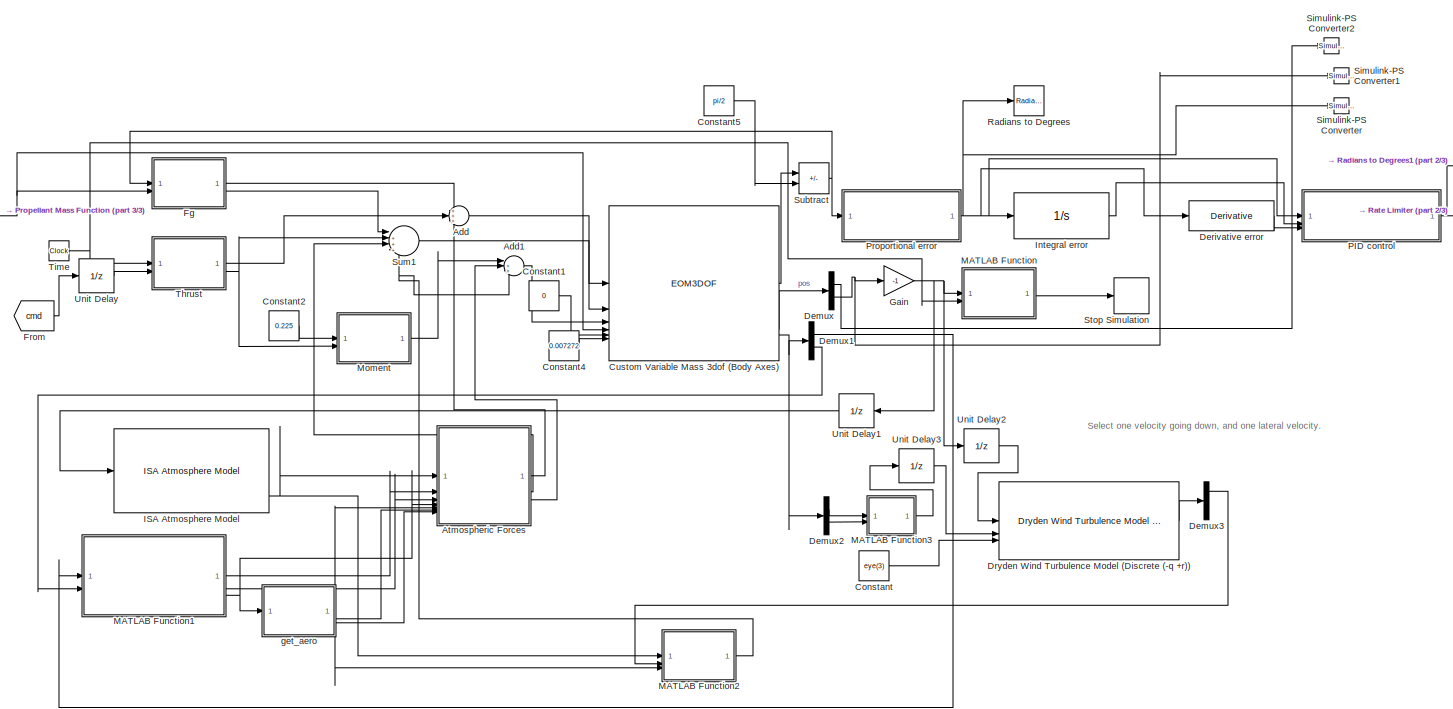
[diagram: root canvas - part 1/3, center side, full height]
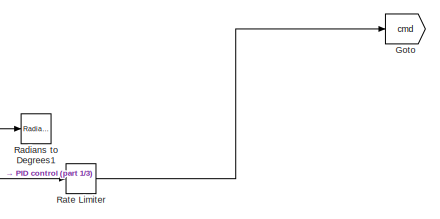
[diagram: root canvas - part 2/3, top right region]
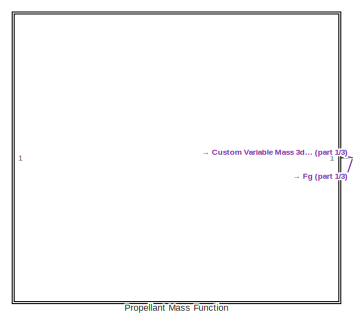
[diagram: root canvas - part 3/3, top left region]
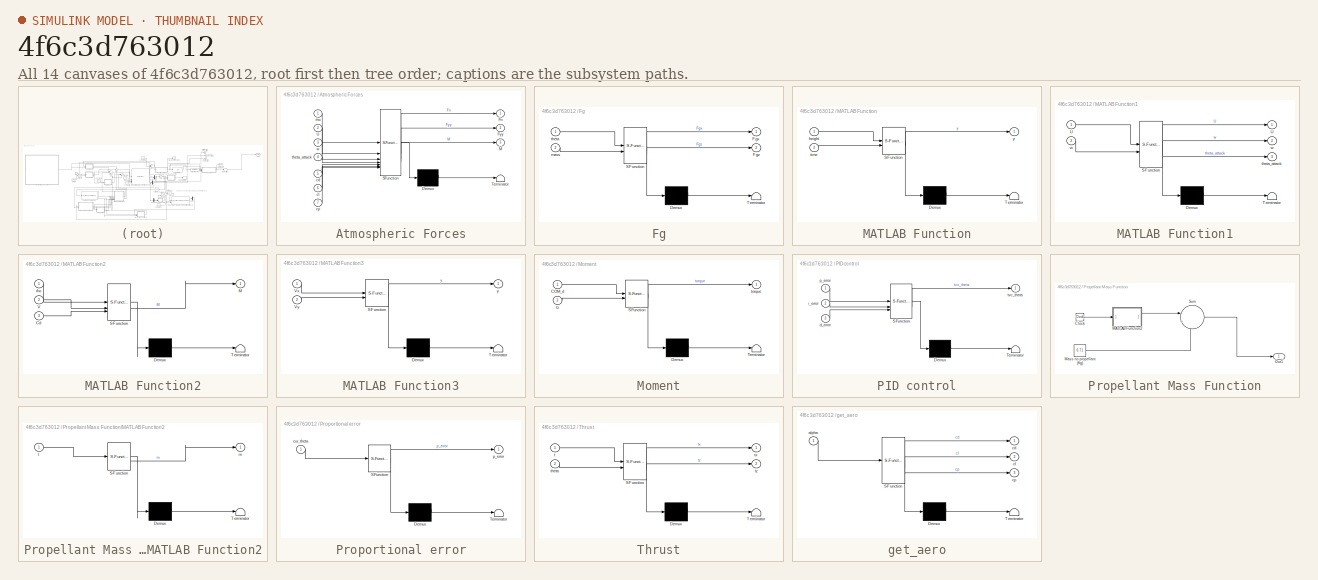
[diagram: thumbnail index - all 14 canvases of the model, root first then tree order]
MODEL slx_4f6c3d763012
KIND model
CONFIG AbsTol = auto
CONFIG EnableMultiTasking = off
CONFIG FixedStep = 0.01
CONFIG MaxStep = auto
CONFIG MinStep = auto
CONFIG RelTol = 1e-3
CONFIG SampleTimeConstraint = Unconstrained
CONFIG SolverName = FixedStepAuto
CONFIG StartTime = 0.0
CONFIG StopTime = 30
WORKSPACE source: mxarray member
WORKSPACE T_data = [16.81 22.34 22.23 21.49 20 20.21 18.09 15.74 13.4 10.85 10.21 8.94 ... (27 elements, 27x1)]
WORKSPACE aero_data: object (value not decoded)
WORKSPACE t_data = [0.01 0.03 0.11 0.26 0.37 0.47 0.67 0.99 1.31 1.81 2.49 3.13 ... (27 elements, 27x1)]
BLOCK [Sum] Add
  Inputs = +++
BLOCK [Sum] Add1
  Inputs = |+++
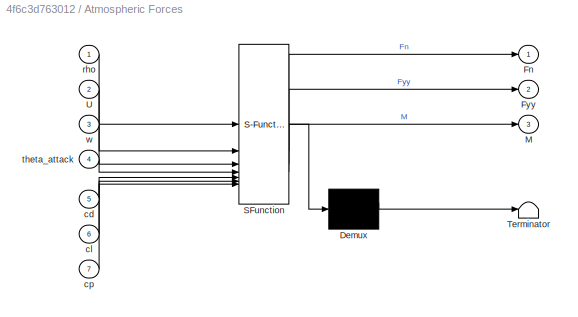
BLOCK [SubSystem] Atmospheric Forces
  ErrorFcn = Stateflow.Translate.translate
  PermitHierarchicalResolution = ExplicitOnly
  SFBlockType = MATLAB Function
  TreatAsAtomicUnit = on
BLOCK [Demux] Atmospheric Forces/ Demux 
  Outputs = 1
BLOCK [S-Function] Atmospheric Forces/ SFunction 
  EnableBusSupport = off
  FunctionName = sf_sfun
  PortCounts = [7 4]
  SFcnIsStateOwnerBlock = off
  SFunctionDeploymentMode = off
  Tag = Stateflow S-Function 8
BLOCK [Terminator] Atmospheric Forces/ Terminator 
BLOCK [Outport] Atmospheric Forces/Fn
BLOCK [Outport] Atmospheric Forces/Fyy
  Port = 2
BLOCK [Outport] Atmospheric Forces/M
  Port = 3
BLOCK [Inport] Atmospheric Forces/U
  Port = 2
BLOCK [Inport] Atmospheric Forces/cd
  Port = 5
BLOCK [Inport] Atmospheric Forces/cl
  Port = 6
BLOCK [Inport] Atmospheric Forces/cp
  Port = 7
BLOCK [Inport] Atmospheric Forces/rho
BLOCK [Inport] Atmospheric Forces/theta_attack
  Port = 4
BLOCK [Inport] Atmospheric Forces/w
  Port = 3
BLOCK [Constant] Constant
  Value = eye(3)
BLOCK [Constant] Constant1
  Value = 0
BLOCK [Constant] Constant2
  Value = 0.225
BLOCK [Constant] Constant4
  Value = 0.007272
  VectorParams1D = off
BLOCK [Constant] Constant5
  Value = pi/2
BLOCK [EOM3DOF] Custom Variable Mass 3dof (Body Axes)
  g = 0
  mtype = Custom Variable
  theta_ini = deg2rad(93)
  v_ini = 0.1
BLOCK [Demux] Demux
  Outputs = 2
BLOCK [Demux] Demux1
  Outputs = 2
BLOCK [Demux] Demux2
  Outputs = 2
BLOCK [Demux] Demux3
  Outputs = 3
BLOCK [Derivative] Derivative error
BLOCK [Reference] Dryden Wind Turbulence Model (Discrete (-q +r))  REF=aerolibwind2/Dryden Wind Turbulence Model 
(Continuous (+q -r))
  LibrarySourceBlock = aerolibwind2/Dryden Wind Turbulence Model \n(Discrete (-q +r))
  SourceBlock = aerolibwind2/Dryden Wind Turbulence Model \n(Continuous (+q -r))
  SourceType = Wind Turbulence Model
BLOCK [SubSystem] Fg
  ErrorFcn = Stateflow.Translate.translate
  PermitHierarchicalResolution = ExplicitOnly
  SFBlockType = MATLAB Function
  TreatAsAtomicUnit = on
BLOCK [Demux] Fg/ Demux 
  Outputs = 1
BLOCK [S-Function] Fg/ SFunction 
  EnableBusSupport = off
  FunctionName = sf_sfun
  PortCounts = [2 3]
  SFcnIsStateOwnerBlock = off
  SFunctionDeploymentMode = off
  Tag = Stateflow S-Function 4
BLOCK [Terminator] Fg/ Terminator 
BLOCK [Outport] Fg/Fgx
BLOCK [Outport] Fg/Fgz
  Port = 2
BLOCK [Inport] Fg/mass
  Port = 2
BLOCK [Inport] Fg/theta
BLOCK [From] From
  GotoTag = cmd
BLOCK [Gain] Gain
  Gain = -1
BLOCK [Goto] Goto
  GotoTag = cmd
BLOCK [Reference] ISA Atmosphere Model  REF=aerolibatmos2/ISA Atmosphere Model
  SourceBlock = aerolibatmos2/ISA Atmosphere Model
  SourceType = International Standard Atmosphere Model
BLOCK [Integrator] Integral error
  ContinuousStateAttributes = 'error'
  LimitOutput = on
  LowerSaturationLimit = -0.5
  UpperSaturationLimit = 0.5
BLOCK [SubSystem] MATLAB Function
  ErrorFcn = Stateflow.Translate.translate
  PermitHierarchicalResolution = ExplicitOnly
  SFBlockType = MATLAB Function
  TreatAsAtomicUnit = on
BLOCK [Demux] MATLAB Function/ Demux 
  Outputs = 1
BLOCK [S-Function] MATLAB Function/ SFunction 
  EnableBusSupport = off
  FunctionName = sf_sfun
  PortCounts = [2 2]
  SFcnIsStateOwnerBlock = off
  SFunctionDeploymentMode = off
  Tag = Stateflow S-Function 3
BLOCK [Terminator] MATLAB Function/ Terminator 
BLOCK [Inport] MATLAB Function/height
BLOCK [Inport] MATLAB Function/time
  Port = 2
BLOCK [Outport] MATLAB Function/y
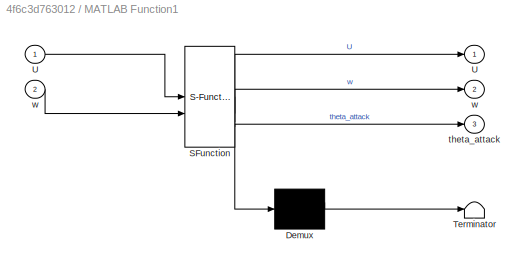
BLOCK [SubSystem] MATLAB Function1
  ErrorFcn = Stateflow.Translate.translate
  PermitHierarchicalResolution = ExplicitOnly
  SFBlockType = MATLAB Function
  TreatAsAtomicUnit = on
BLOCK [Demux] MATLAB Function1/ Demux 
  Outputs = 1
BLOCK [S-Function] MATLAB Function1/ SFunction 
  EnableBusSupport = off
  FunctionName = sf_sfun
  PortCounts = [2 4]
  SFcnIsStateOwnerBlock = off
  SFunctionDeploymentMode = off
  Tag = Stateflow S-Function 7
BLOCK [Terminator] MATLAB Function1/ Terminator 
BLOCK [Outport] MATLAB Function1/U
BLOCK [Inport] MATLAB Function1/U 
BLOCK [Outport] MATLAB Function1/theta_attack
  Port = 3
BLOCK [Outport] MATLAB Function1/w
  Port = 2
BLOCK [Inport] MATLAB Function1/w 
  Port = 2
BLOCK [SubSystem] MATLAB Function2
  ErrorFcn = Stateflow.Translate.translate
  PermitHierarchicalResolution = ExplicitOnly
  SFBlockType = MATLAB Function
  TreatAsAtomicUnit = on
BLOCK [Demux] MATLAB Function2/ Demux 
  Outputs = 1
BLOCK [S-Function] MATLAB Function2/ SFunction 
  EnableBusSupport = off
  FunctionName = sf_sfun
  PortCounts = [3 2]
  SFcnIsStateOwnerBlock = off
  SFunctionDeploymentMode = off
  Tag = Stateflow S-Function 12
BLOCK [Terminator] MATLAB Function2/ Terminator 
BLOCK [Inport] MATLAB Function2/Cd
  Port = 3
BLOCK [Outport] MATLAB Function2/M
BLOCK [Inport] MATLAB Function2/V
  Port = 2
BLOCK [Inport] MATLAB Function2/rho
BLOCK [SubSystem] MATLAB Function3
  ErrorFcn = Stateflow.Translate.translate
  PermitHierarchicalResolution = ExplicitOnly
  SFBlockType = MATLAB Function
  TreatAsAtomicUnit = on
BLOCK [Demux] MATLAB Function3/ Demux 
  Outputs = 1
BLOCK [S-Function] MATLAB Function3/ SFunction 
  EnableBusSupport = off
  FunctionName = sf_sfun
  PortCounts = [2 2]
  SFcnIsStateOwnerBlock = off
  SFunctionDeploymentMode = off
  Tag = Stateflow S-Function 11
BLOCK [Terminator] MATLAB Function3/ Terminator 
BLOCK [Inport] MATLAB Function3/Vx
BLOCK [Inport] MATLAB Function3/Vy
  Port = 2
BLOCK [Outport] MATLAB Function3/y
BLOCK [SubSystem] Moment
  ErrorFcn = Stateflow.Translate.translate
  PermitHierarchicalResolution = ExplicitOnly
  SFBlockType = MATLAB Function
  TreatAsAtomicUnit = on
BLOCK [Demux] Moment/ Demux 
  Outputs = 1
BLOCK [S-Function] Moment/ SFunction 
  EnableBusSupport = off
  FunctionName = sf_sfun
  PortCounts = [2 2]
  SFcnIsStateOwnerBlock = off
  SFunctionDeploymentMode = off
  Tag = Stateflow S-Function 1
BLOCK [Terminator] Moment/ Terminator 
BLOCK [Inport] Moment/COM_d
BLOCK [Outport] Moment/torque
BLOCK [Inport] Moment/tz
  Port = 2
BLOCK [SubSystem] PID control
  ErrorFcn = Stateflow.Translate.translate
  PermitHierarchicalResolution = ExplicitOnly
  SFBlockType = MATLAB Function
  TreatAsAtomicUnit = on
BLOCK [Demux] PID control/ Demux 
  Outputs = 1
BLOCK [S-Function] PID control/ SFunction 
  EnableBusSupport = off
  FunctionName = sf_sfun
  PortCounts = [3 2]
  SFcnIsStateOwnerBlock = off
  SFunctionDeploymentMode = off
  Tag = Stateflow S-Function 6
BLOCK [Terminator] PID control/ Terminator 
BLOCK [Inport] PID control/d_error
  Port = 3
BLOCK [Inport] PID control/i_error
  Port = 2
BLOCK [Inport] PID control/p_error
BLOCK [Outport] PID control/tvc_theta
BLOCK [SubSystem] Propellant Mass Function
BLOCK [Clock] Propellant Mass Function/Clock
  DisplayTime = on
BLOCK [SubSystem] Propellant Mass Function/MATLAB Function2
  ErrorFcn = Stateflow.Translate.translate
  PermitHierarchicalResolution = ExplicitOnly
  SFBlockType = MATLAB Function
  TreatAsAtomicUnit = on
BLOCK [Demux] Propellant Mass Function/MATLAB Function2/ Demux 
  Outputs = 1
BLOCK [S-Function] Propellant Mass Function/MATLAB Function2/ SFunction 
  EnableBusSupport = off
  FunctionName = sf_sfun
  PortCounts = [1 2]
  SFcnIsStateOwnerBlock = off
  SFunctionDeploymentMode = off
  Tag = Stateflow S-Function 10
BLOCK [Terminator] Propellant Mass Function/MATLAB Function2/ Terminator 
BLOCK [Outport] Propellant Mass Function/MATLAB Function2/m
BLOCK [Inport] Propellant Mass Function/MATLAB Function2/t
BLOCK [Constant] Propellant Mass Function/Mass no propellant (Kg)
  Value = 0.71
BLOCK [Outport] Propellant Mass Function/Out1
BLOCK [Sum] Propellant Mass Function/Sum
  Inputs = |++
BLOCK [SubSystem] Proportional error
  ErrorFcn = Stateflow.Translate.translate
  PermitHierarchicalResolution = ExplicitOnly
  SFBlockType = MATLAB Function
  TreatAsAtomicUnit = on
BLOCK [Demux] Proportional error/ Demux 
  Outputs = 1
BLOCK [S-Function] Proportional error/ SFunction 
  EnableBusSupport = off
  FunctionName = sf_sfun
  PortCounts = [1 2]
  SFcnIsStateOwnerBlock = off
  SFunctionDeploymentMode = off
  Tag = Stateflow S-Function 5
BLOCK [Terminator] Proportional error/ Terminator 
BLOCK [Inport] Proportional error/cur_theta
BLOCK [Outport] Proportional error/p_error
BLOCK [Reference] Radians to Degrees  REF=simulink_extras/Transformations/Radians
to Degrees
  SourceBlock = simulink_extras/Transformations/Radians\nto Degrees
  SourceType = RadiansToDegrees
BLOCK [Reference] Radians to Degrees1  REF=simulink_extras/Transformations/Radians
to Degrees
  SourceBlock = simulink_extras/Transformations/Radians\nto Degrees
  SourceType = RadiansToDegrees
BLOCK [RateLimiter] Rate Limiter
  FallingSlewLimit = -500
  RisingSlewLimit = 500
  SampleTimeMode = inherited
BLOCK [Reference] Simulink-PS Converter  REF=nesl_utility/Simulink-PS
Converter
  SourceBlock = nesl_utility/Simulink-PS\nConverter
  SourceType = Simulink-PS\nConverter
BLOCK [Reference] Simulink-PS Converter1  REF=nesl_utility/Simulink-PS
Converter
  SourceBlock = nesl_utility/Simulink-PS\nConverter
  SourceType = Simulink-PS\nConverter
BLOCK [Reference] Simulink-PS Converter2  REF=nesl_utility/Simulink-PS
Converter
  SourceBlock = nesl_utility/Simulink-PS\nConverter
  SourceType = Simulink-PS\nConverter
BLOCK [Stop] Stop Simulation
BLOCK [Sum] Subtract
  IconShape = rectangular
  Inputs = +-
BLOCK [Sum] Sum1
  Inputs = |++++
BLOCK [SubSystem] Thrust
  ErrorFcn = Stateflow.Translate.translate
  PermitHierarchicalResolution = ExplicitOnly
  SFBlockType = MATLAB Function
  TreatAsAtomicUnit = on
BLOCK [Demux] Thrust/ Demux 
  Outputs = 1
BLOCK [S-Function] Thrust/ SFunction 
  EnableBusSupport = off
  FunctionName = sf_sfun
  PortCounts = [2 3]
  SFcnIsStateOwnerBlock = off
  SFunctionDeploymentMode = off
  Tag = Stateflow S-Function 2
BLOCK [Terminator] Thrust/ Terminator 
BLOCK [Inport] Thrust/t
BLOCK [Inport] Thrust/theta
  Port = 2
BLOCK [Outport] Thrust/tx
BLOCK [Outport] Thrust/tz
  Port = 2
BLOCK [Clock] Time
  NameLocation = left
BLOCK [UnitDelay] Unit Delay
  HasFrameUpgradeWarning = on
  InitialCondition = 0.0524
  SampleTime = -1
BLOCK [UnitDelay] Unit Delay1
  HasFrameUpgradeWarning = on
  SampleTime = -1
BLOCK [UnitDelay] Unit Delay2
  HasFrameUpgradeWarning = on
  SampleTime = -1
BLOCK [UnitDelay] Unit Delay3
  HasFrameUpgradeWarning = on
  SampleTime = -1
BLOCK [SubSystem] get_aero
  ErrorFcn = Stateflow.Translate.translate
  PermitHierarchicalResolution = ExplicitOnly
  SFBlockType = MATLAB Function
  TreatAsAtomicUnit = on
BLOCK [Demux] get_aero/ Demux 
  Outputs = 1
BLOCK [S-Function] get_aero/ SFunction 
  EnableBusSupport = off
  FunctionName = sf_sfun
  PortCounts = [1 4]
  SFcnIsStateOwnerBlock = off
  SFunctionDeploymentMode = off
  Tag = Stateflow S-Function 9
BLOCK [Terminator] get_aero/ Terminator 
BLOCK [Inport] get_aero/alpha
BLOCK [Outport] get_aero/cd
BLOCK [Outport] get_aero/cl
  Port = 2
BLOCK [Outport] get_aero/cp
  Port = 3
ANNOTATION (root): Select one velocity going down, and one lateral velocity.
LINE Add1:1 -> Custom Variable Mass 3dof (Body Axes):3
LINE Add:1 -> Custom Variable Mass 3dof (Body Axes):1
LINE Atmospheric Forces:1 -> Add:3
LINE Atmospheric Forces:2 -> Sum1:3
LINE Atmospheric Forces:3 -> Add1:2
LINE Constant1:1 -> Custom Variable Mass 3dof (Body Axes):5
LINE Constant2:1 -> Moment:1
LINE Constant4:1 -> Custom Variable Mass 3dof (Body Axes):6
LINE Constant5:1 -> Subtract:2
LINE Constant:1 -> Dryden Wind Turbulence Model (Discrete (-q +r)):3
LINE Custom Variable Mass 3dof (Body Axes):1 -> Subtract:1
LINE Custom Variable Mass 3dof (Body Axes):4 -> Demux:1
NET Custom Variable Mass 3dof (Body Axes):5 -> Demux1:1, Demux2:1
LINE Demux1:1 -> MATLAB Function1:1
LINE Demux1:2 -> MATLAB Function1:2
LINE Demux2:1 -> MATLAB Function3:1
LINE Demux2:2 -> MATLAB Function3:2
LINE Demux3:1 -> MATLAB Function2:2
LINE Demux:1 -> Simulink-PS Converter2:1
NET Demux:2 -> Gain:1, Simulink-PS Converter1:1
LINE Derivative error:1 -> PID control:3
LINE Dryden Wind Turbulence Model (Discrete (-q +r)):1 -> Demux3:1
LINE Fg:1 -> Add:1
LINE Fg:2 -> Sum1:1
LINE From:1 -> Unit Delay:1
NET Gain:1 -> MATLAB Function:1, Unit Delay1:1, Unit Delay2:1
NET ISA Atmosphere Model:4 -> Atmospheric Forces:1, MATLAB Function2:1
LINE Integral error:1 -> PID control:2
LINE MATLAB Function1:1 -> Atmospheric Forces:2
LINE MATLAB Function1:2 -> Atmospheric Forces:3
NET MATLAB Function1:3 -> Atmospheric Forces:4, get_aero:1
NET MATLAB Function2:1 -> Add1:3, Sum1:4
LINE MATLAB Function3:1 -> Unit Delay3:1
LINE MATLAB Function:1 -> Stop Simulation:1
LINE Moment:1 -> Add1:1
NET PID control:1 -> Radians to Degrees1:1, Rate Limiter:1
LINE Propellant Mass Function/Clock:1 -> Propellant Mass Function/MATLAB Function2:1
LINE Propellant Mass Function/MATLAB Function2:1 -> Propellant Mass Function/Sum:1
LINE Propellant Mass Function/Mass no propellant (Kg):1 -> Propellant Mass Function/Sum:2
LINE Propellant Mass Function/Sum:1 -> Propellant Mass Function/Out1:1
NET Propellant Mass Function:1 -> Custom Variable Mass 3dof (Body Axes):4, Fg:2
NET Proportional error:1 -> Derivative error:1, Integral error:1, PID control:1, Radians to Degrees:1, Simulink-PS Converter:1
LINE Rate Limiter:1 -> Goto:1
NET Subtract:1 -> Fg:1, Proportional error:1
LINE Sum1:1 -> Custom Variable Mass 3dof (Body Axes):2
LINE Thrust:1 -> Add:2
NET Thrust:2 -> Moment:2, Sum1:2
NET Time:1 -> MATLAB Function:2, Thrust:1
LINE Unit Delay1:1 -> ISA Atmosphere Model:1
LINE Unit Delay2:1 -> Dryden Wind Turbulence Model (Discrete (-q +r)):1
LINE Unit Delay3:1 -> Dryden Wind Turbulence Model (Discrete (-q +r)):2
LINE Unit Delay:1 -> Thrust:2
NET get_aero:1 -> Atmospheric Forces:5, MATLAB Function2:3
LINE get_aero:2 -> Atmospheric Forces:6
LINE get_aero:3 -> Atmospheric Forces:7
note: NET lines group one-source signal fan-out (src -> all destinations, sorted); 1:1 wires keep LINE
CHART Propellant Mass Function/MATLAB Function2 states=1 transitions=1
  STATE_LABEL 'eML_blk_kernel()'
  STATE_LABEL 'SCRIPT:\nfunction m = propellantmass(t)\n    %#codegen\n    m = ((0.3567 * t^2) - (8.072 *t) + 39.18)/1000;\n    end'
CHART MATLAB Function3 states=1 transitions=1
  STATE_LABEL 'eML_blk_kernel()'
  STATE_LABEL 'SCRIPT:\nfunction y = fcn(Vx,Vy)\n\n\n\ny= (Vx^2 +Vy^2)^(1/2);\n'
CHART MATLAB Function2 states=1 transitions=1
  STATE_LABEL 'eML_blk_kernel()'
  STATE_LABEL 'SCRIPT:\nfunction M = fcn(rho,V,Cd)\nA = 0.079 * 0.762;\nF = 1/2 * V^2 * rho *Cd *A;\nM = 0.225 * F\n'
CHART Moment states=1 transitions=1
  STATE_LABEL 'eML_blk_kernel()'
  STATE_LABEL 'SCRIPT:\nfunction torque = fcn(COM_d, tz)\n\ntorque = COM_d * tz;'
CHART Thrust states=1 transitions=1
  STATE_LABEL 'eML_blk_kernel()'
  STATE_LABEL "SCRIPT:\nfunction [tx, tz] = fcn(t, theta)\n    persistent thrust_interp;\n    \n    if isempty(thrust_interp)\n        loadedData = load('interp_thrust_data.mat'); \n        disp(loadedData)\n        t_data = loadedData.t_data;\n        T_data = loadedData.T_data; \n\n        thrust_interp = @(t) interp1(t_data, T_data, t, 'pchip', 'extrap');\n    end\n\n    burnout_time = 7.246;\n    if t < burnout_time\n     ...<+117ch>"
CHART MATLAB Function states=1 transitions=1
  STATE_LABEL 'eML_blk_kernel()'
  STATE_LABEL 'SCRIPT:\nfunction y = fcn(height, time)\n\nif time > 1 && height < 0\n    y = 1;\nelse\n    y = 0;\nend'
CHART Fg states=1 transitions=1
  STATE_LABEL 'eML_blk_kernel()'
  STATE_LABEL 'SCRIPT:\nfunction [Fgx, Fgz]= fcn(theta, mass)\n\nFgx = mass * -cos(theta) * 9.8;\nFgz = mass * sin(theta) * -9.8;\n'
CHART Proportional error states=1 transitions=1
  STATE_LABEL 'eML_blk_kernel()'
  STATE_LABEL 'SCRIPT:\nfunction p_error = fcn(cur_theta)\n    p_error = cur_theta;\nend\n'
CHART PID control states=1 transitions=1
  STATE_LABEL 'eML_blk_kernel()'
  STATE_LABEL 'SCRIPT:\nfunction tvc_theta = fcn(p_error, i_error, d_error)\n    Kp = .4;\n    Ki = .15;\n    Kd = 0.05;\n\n    tvc_theta = Kp * p_error + Ki * i_error + Kd * d_error;\n    tvc_theta = max(min(tvc_theta, deg2rad(7)), -deg2rad(7));\nend'
CHART MATLAB Function1 states=1 transitions=1
  STATE_LABEL 'eML_blk_kernel()'
  STATE_LABEL 'SCRIPT:\nfunction [U, w, theta_attack] = fcn(U, w)\n\ntheta_attack = atan(w/U);'
CHART Atmospheric Forces states=1 transitions=1
  STATE_LABEL 'eML_blk_kernel()'
  STATE_LABEL 'SCRIPT:\nfunction [Fn, Fyy, M] = fcn(rho, U, w, theta_attack, cd, cl, cp)\n    V = sqrt(U^2 + w^2);\n\n    Sref = pi * (0.0762/2)^2;\n\n    q = 1/2 * rho * V^2;\n\n    L = q * cl * Sref;\n    D = q * cd * Sref;\n\n    Xw = -D;\n    Zw = -L;\n    \n    cg = 0.3302; % from nosecone\n\n    Fn =  cos(theta_attack)*Xw - sin(theta_attack)*Zw\n    Fyy =  sin(theta_attack)*Xw + cos(theta_attack)*Zw\n    M = Fyy * (cp - cg)...<+5ch>'
CHART get_aero states=1 transitions=1
  STATE_LABEL 'eML_blk_kernel()'
  STATE_LABEL 'SCRIPT:\nfunction [cd, cl, cp] = get_aero(alpha)\n\n    S = load("alpha_interp.mat");  \n    Alpha = S.aero_data.Alpha;\n    CD_full = S.aero_data.CD;\n    CL_full = S.aero_data.CL;\n    CP_full = S.aero_data.CP;\n\n    cd = interp1(Alpha, CD_full, alpha, \'linear\', \'extrap\');\n    cl = interp1(Alpha, CL_full, alpha, \'linear\', \'extrap\');\n    cp = interp1(Alpha, CP_full, alpha, \'linear\', \'extrap\');\n    cp = c...<+15ch>'
CHART  states=0 transitions=0
CHART  states=0 transitions=0
CHART  states=0 transitions=0
CHART  states=0 transitions=0
CHART  states=0 transitions=0
CHART  states=0 transitions=0
CHART  states=0 transitions=0
CHART  states=0 transitions=0
CHART  states=0 transitions=0
CHART  states=0 transitions=0
CHART  states=0 transitions=0
CHART  states=0 transitions=0
